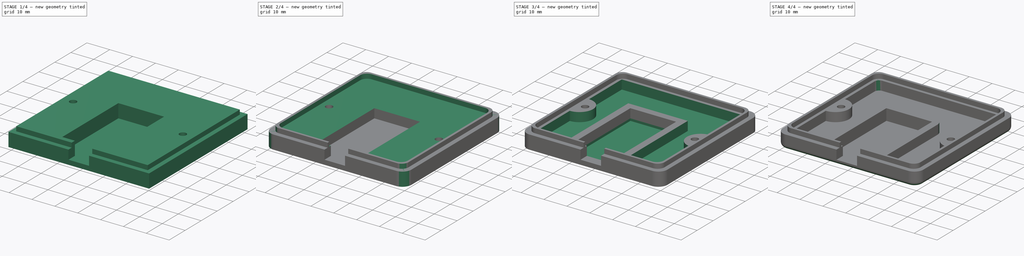
[diagram: build sequence overview — one tinted view per stage of 4, left to right]
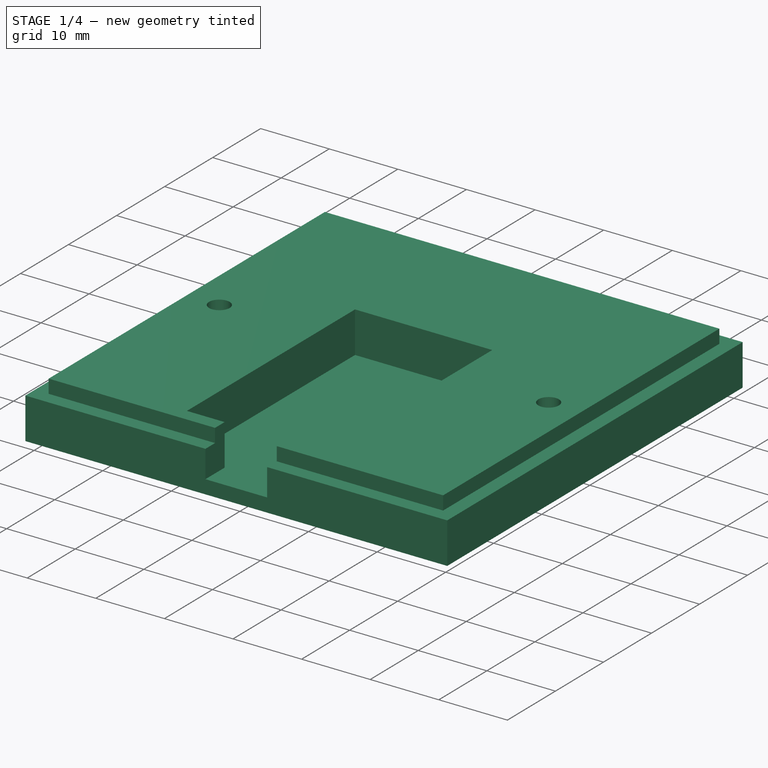
[diagram: stage 1 of 4 — iso view after this stage's code; geometry added in this stage tinted green]
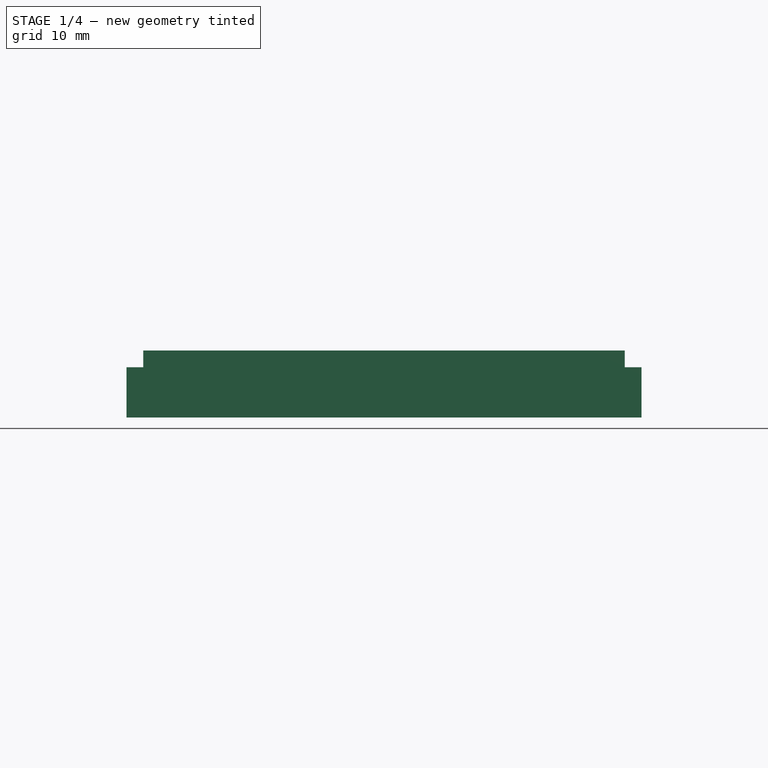
[diagram: stage 1 of 4 — front view after this stage's code; geometry added in this stage tinted green]
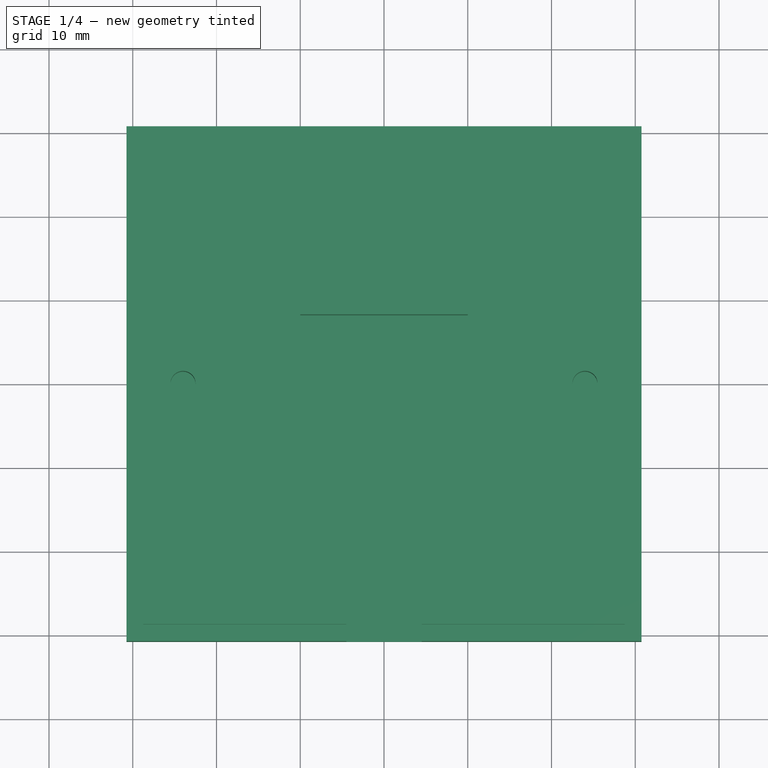
[diagram: stage 1 of 4 — top view after this stage's code; geometry added in this stage tinted green]
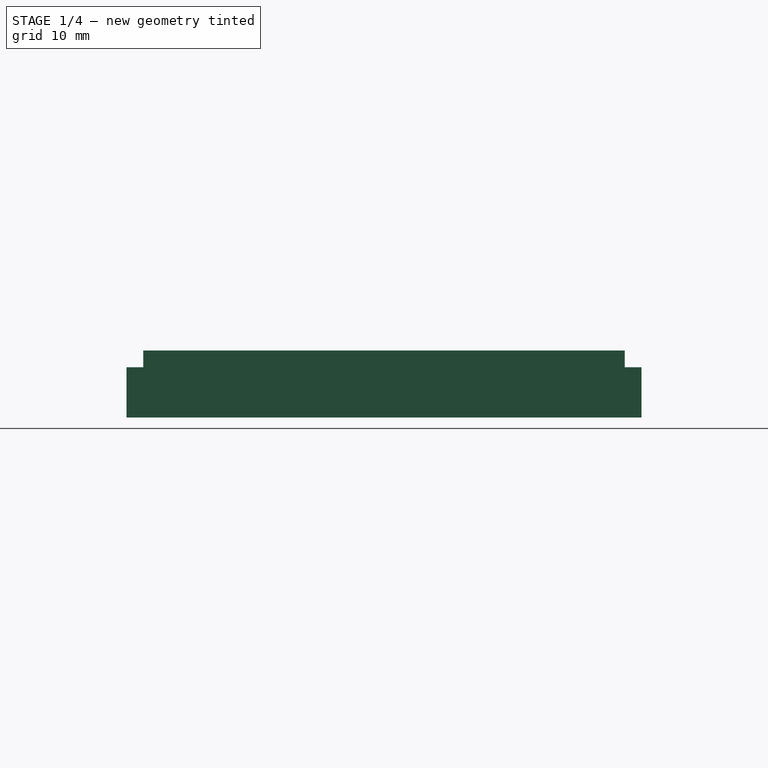
[diagram: stage 1 of 4 — right view after this stage's code; geometry added in this stage tinted green]
FCSTD DOCUMENT  (FreeCAD 0.17R13541 (Git))
Label: case_v1.0
License: All rights reserved
LicenseURL: http://en.wikipedia.org/wiki/All_rights_reserved
objects: Sketcher::SketchObject×6, PartDesign::Pocket×5, PartDesign::Fillet×5, PartDesign::Pad×1, PartDesign::Body×1
note: 24 computed .brp shape members not serialized (recipe doc carries the construction recipe); baked Part::Feature solids carry a one-line shape summary decoded from their .brp

FEATURE [Sketcher::SketchObject] Sketch
  MapMode = 5
  Support = -> [XY_Plane]
  sketch-geometry (4):
    g0: LineSegment StartX=-30.75 StartY=30.75 StartZ=0 EndX=30.75 EndY=30.75 EndZ=0
    g1: LineSegment StartX=30.75 StartY=30.75 StartZ=0 EndX=30.75 EndY=-30.75 EndZ=0
    g2: LineSegment StartX=30.75 StartY=-30.75 StartZ=0 EndX=-30.75 EndY=-30.75 EndZ=0
    g3: LineSegment StartX=-30.75 StartY=-30.75 StartZ=0 EndX=-30.75 EndY=30.75 EndZ=0
  constraints (12):
    c: Coincident(g0,g1)
    c: Coincident(g1,g2)
    c: Coincident(g2,g3)
    c: Coincident(g3,g0)
    c: Horizontal(g0)
    c: Horizontal(g2)
    c: Vertical(g1)
    c: Vertical(g3)
    c: Symmetric(g0,g0,g-2)
    c: Symmetric(g0,g2,g-1)
    c: DistanceX(g0,g0) = 61.5
    c: DistanceY(g3,g3) = 61.5
FEATURE [PartDesign::Pad] Pad
  Length = 8
  Length2 = 100
  Profile = -> Sketch
  Type = 0
FEATURE [Sketcher::SketchObject] Sketch001
  ExternalGeometry = -> [Pad]
  MapMode = 5
  Placement = pos=(0,0,8) rot=(0,0,1;0rad)
  Support = -> [Pad]
  sketch-geometry (10):
    g0: Circle CenterX=-24 CenterY=0 CenterZ=0 NormalX=0 NormalY=0 NormalZ=1 AngleXU=0 Radius=1.5
    g1: Circle CenterX=24 CenterY=0 CenterZ=0 NormalX=0 NormalY=0 NormalZ=1 AngleXU=0 Radius=1.5
    g2: LineSegment StartX=-10 StartY=8.25 StartZ=0 EndX=10 EndY=8.25 EndZ=0
    g3: LineSegment StartX=10 StartY=8.25 StartZ=0 EndX=10 EndY=-26.75 EndZ=0
    g4: LineSegment StartX=10 StartY=-26.75 StartZ=0 EndX=4.5 EndY=-26.75 EndZ=0
    g5: LineSegment StartX=-10 StartY=-26.75 StartZ=0 EndX=-10 EndY=8.25 EndZ=0
    g6: LineSegment StartX=4.5 StartY=-26.75 StartZ=0 EndX=4.5 EndY=-30.75 EndZ=0
    g7: LineSegment StartX=4.5 StartY=-30.75 StartZ=0 EndX=-4.5 EndY=-30.75 EndZ=0
    g8: LineSegment StartX=-4.5 StartY=-30.75 StartZ=0 EndX=-4.5 EndY=-26.75 EndZ=0
    g9: LineSegment StartX=-4.5 StartY=-26.75 StartZ=0 EndX=-10 EndY=-26.75 EndZ=0
  constraints (31):
    c: PointOnObject(g0,g-1)
    c: PointOnObject(g1,g-1)
    c: Symmetric(g0,g1,g-1)
    c: DistanceX(g0,g1) = 48
    c: Radius(g0) = 1.5
    c: Equal(g0,g1)
    c: Coincident(g2,g3)
    c: Coincident(g3,g4)
    c: Coincident(g9,g5)
    c: Coincident(g5,g2)
    c: Horizontal(g2)
    c: Horizontal(g4)
    c: Vertical(g3)
    c: Vertical(g5)
    c: DistanceX(g2,g2) = 20
    c: DistanceY(g5,g5) = 35
    c: Symmetric(g2,g2,g-2)
    c: Coincident(g6,g7)
    c: Coincident(g7,g8)
    c: Horizontal(g7)
    c: Vertical(g6)
    c: Vertical(g8)
    c: PointOnObject(g8,g4)
    c: PointOnObject(g4,g6)
    c: PointOnObject(g9,g8)
    c: Tangent(g4,g9)
    c: Equal(g9,g4)
    c: DistanceX(g7,g7) = 9
    c: DistanceY(g8,g8) = 4
    c: PointOnObject(g7,g-3)
    c: Coincident(g6,g4)
FEATURE [PartDesign::Pocket] Pocket
  BaseFeature = -> Pad
  Length = 6
  Length2 = 100
  Profile = -> Sketch001
  Type = 0
FEATURE [Sketcher::SketchObject] Sketch002
  ExternalGeometry = -> [Pocket]
  MapMode = 5
  Placement = pos=(0,0,8) rot=(0,0,1;0rad)
  Support = -> [Pocket]
  sketch-geometry (8):
    g0: LineSegment StartX=-28.75 StartY=28.75 StartZ=0 EndX=28.75 EndY=28.75 EndZ=0
    g1: LineSegment StartX=28.75 StartY=28.75 StartZ=0 EndX=28.75 EndY=-28.75 EndZ=0
    g2: LineSegment StartX=28.75 StartY=-28.75 StartZ=0 EndX=-28.75 EndY=-28.75 EndZ=0
    g3: LineSegment StartX=-28.75 StartY=-28.75 StartZ=0 EndX=-28.75 EndY=28.75 EndZ=0
    g4: LineSegment StartX=-30.75 StartY=30.75 StartZ=0 EndX=30.75 EndY=30.75 EndZ=0
    g5: LineSegment StartX=30.75 StartY=30.75 StartZ=0 EndX=30.75 EndY=-30.75 EndZ=0
    g6: LineSegment StartX=30.75 StartY=-30.75 StartZ=0 EndX=-30.75 EndY=-30.75 EndZ=0
    g7: LineSegment StartX=-30.75 StartY=-30.75 StartZ=0 EndX=-30.75 EndY=30.75 EndZ=0
  constraints (22):
    c: Coincident(g0,g1)
    c: Coincident(g1,g2)
    c: Coincident(g2,g3)
    c: Coincident(g3,g0)
    c: Horizontal(g0)
    c: Horizontal(g2)
    c: Vertical(g1)
    c: Vertical(g3)
    c: Coincident(g4,g5)
    c: Coincident(g5,g6)
    c: Coincident(g6,g7)
    c: Coincident(g7,g4)
    c: Horizontal(g4)
    c: Horizontal(g6)
    c: Vertical(g5)
    c: Vertical(g7)
    c: Coincident(g4,g-3)
    c: Coincident(g5,g-4)
    c: DistanceX(g4,g0) = 2
    c: DistanceY(g0,g4) = 2
    c: DistanceX(g0,g4) = 2
    c: DistanceY(g5,g1) = 2
FEATURE [PartDesign::Pocket] Pocket001
  BaseFeature = -> Pocket
  Length = 2
  Length2 = 100
  Profile = -> Sketch002
  Type = 0
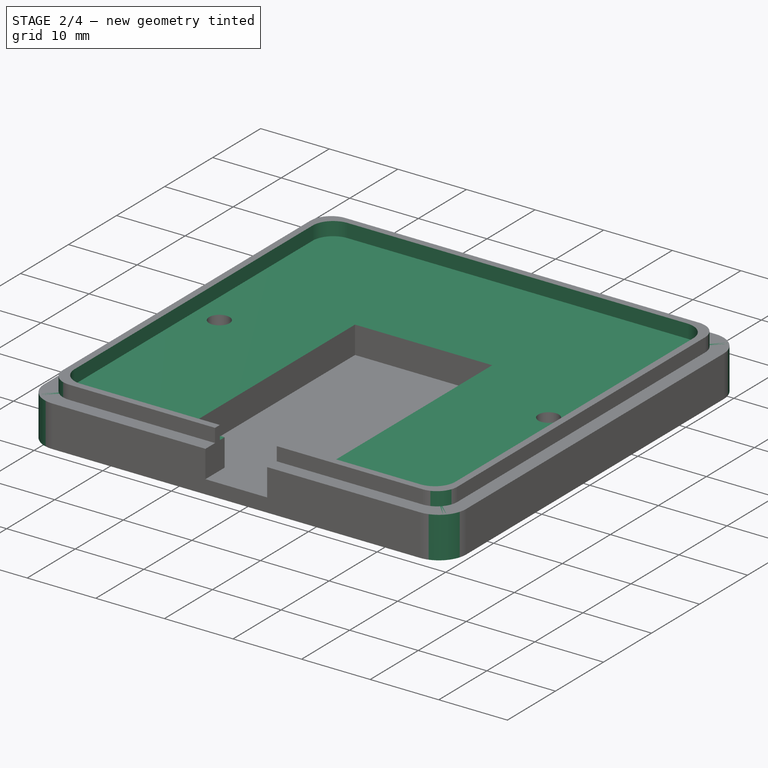
[diagram: stage 2 of 4 — iso view after this stage's code; geometry added in this stage tinted green]
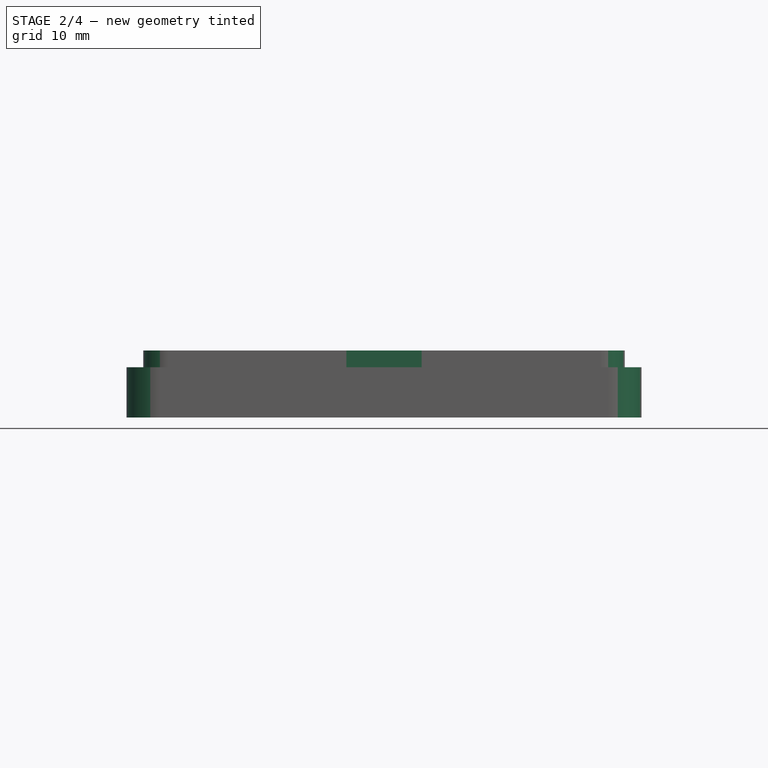
[diagram: stage 2 of 4 — front view after this stage's code; geometry added in this stage tinted green]
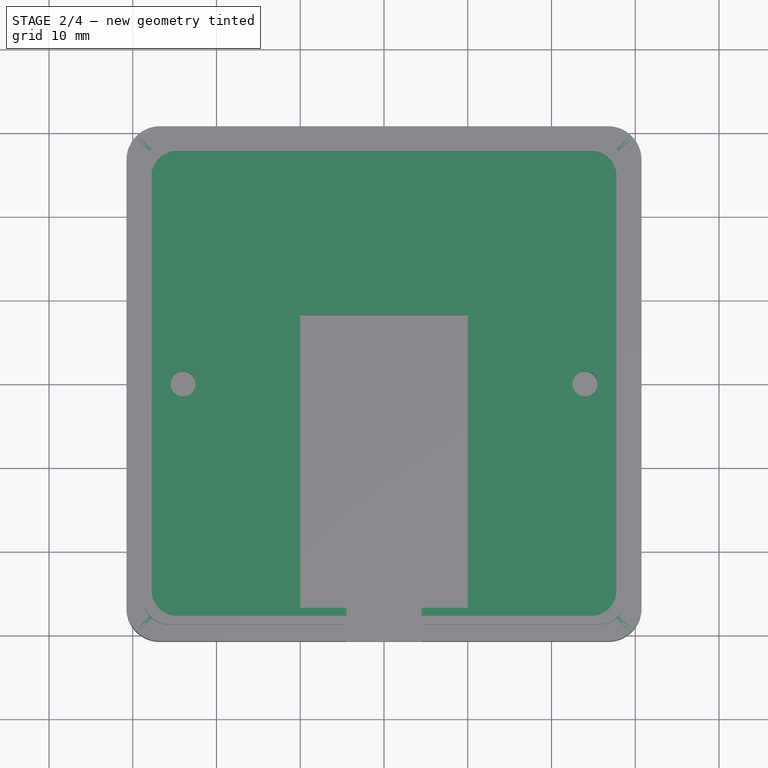
[diagram: stage 2 of 4 — top view after this stage's code; geometry added in this stage tinted green]
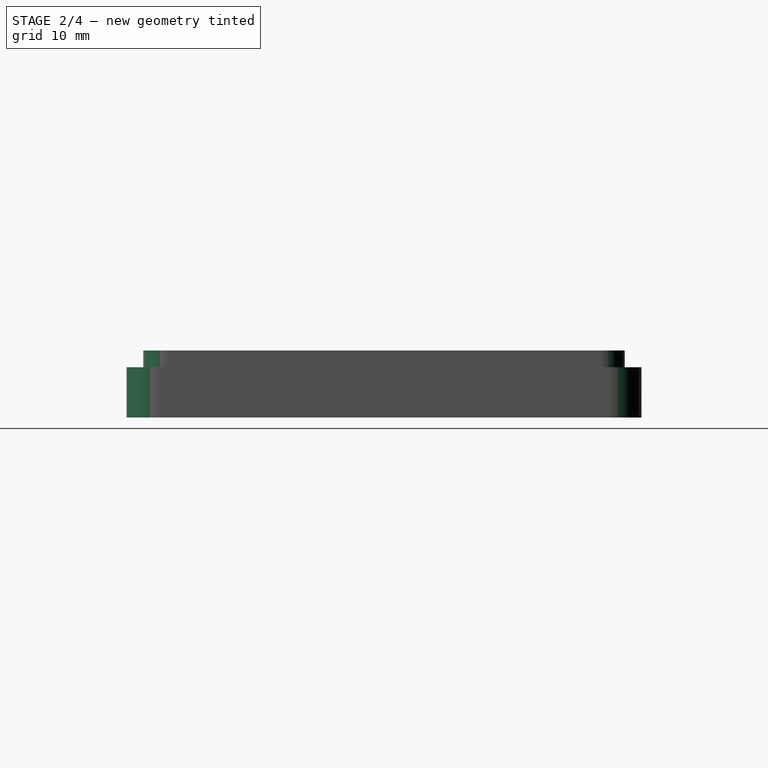
[diagram: stage 2 of 4 — right view after this stage's code; geometry added in this stage tinted green]
FEATURE [Sketcher::SketchObject] Sketch003
  ExternalGeometry = -> [Pocket001]
  MapMode = 5
  Placement = pos=(0,0,8) rot=(0,0,1;0rad)
  Support = -> [Pocket001]
  sketch-geometry (4):
    g0: LineSegment StartX=-27.75 StartY=27.75 StartZ=0 EndX=27.75 EndY=27.75 EndZ=0
    g1: LineSegment StartX=27.75 StartY=27.75 StartZ=0 EndX=27.75 EndY=-27.75 EndZ=0
    g2: LineSegment StartX=27.75 StartY=-27.75 StartZ=0 EndX=-27.75 EndY=-27.75 EndZ=0
    g3: LineSegment StartX=-27.75 StartY=-27.75 StartZ=0 EndX=-27.75 EndY=27.75 EndZ=0
  constraints (12):
    c: Coincident(g0,g1)
    c: Coincident(g1,g2)
    c: Coincident(g2,g3)
    c: Coincident(g3,g0)
    c: Horizontal(g0)
    c: Horizontal(g2)
    c: Vertical(g1)
    c: Vertical(g3)
    c: DistanceY(g0,g-3) = 1
    c: DistanceX(g0,g-3) = 1
    c: DistanceX(g-3,g0) = 1
    c: DistanceY(g-4,g1) = 1
FEATURE [PartDesign::Pocket] Pocket002
  BaseFeature = -> Pocket001
  Length = 2
  Length2 = 100
  Profile = -> Sketch003
  Type = 0
FEATURE [PartDesign::Fillet] Fillet
  Base = -> Pocket002 [Edge20,Edge8,Edge4,Edge2]
  BaseFeature = -> Pocket002
  Radius = 4
FEATURE [PartDesign::Fillet] Fillet001
  Base = -> Fillet [Edge49,Edge47,Edge43,Edge45,Edge86,Edge85,Edge67,Edge82]
  BaseFeature = -> Fillet
  Radius = 3
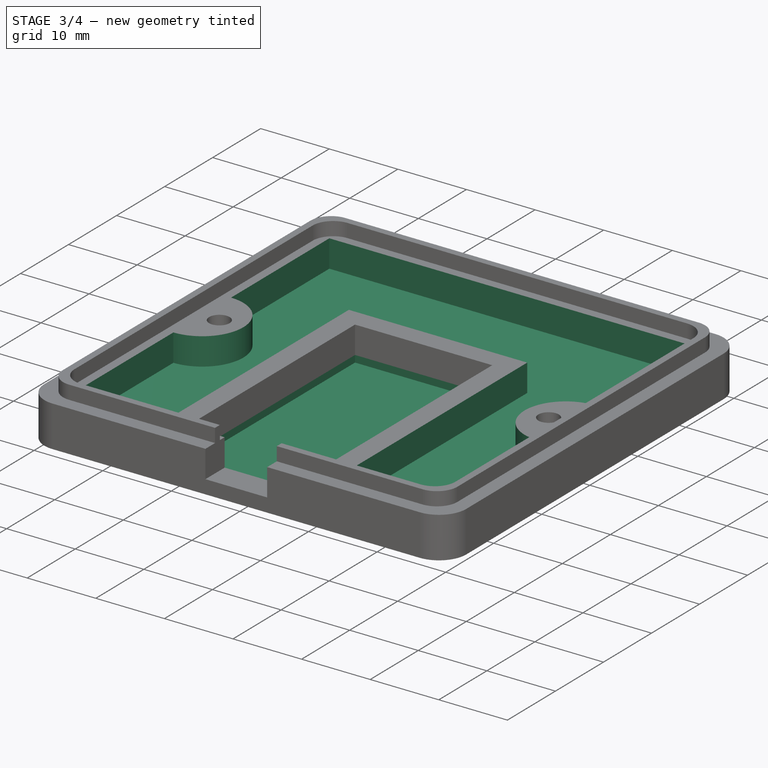
[diagram: stage 3 of 4 — iso view after this stage's code; geometry added in this stage tinted green]
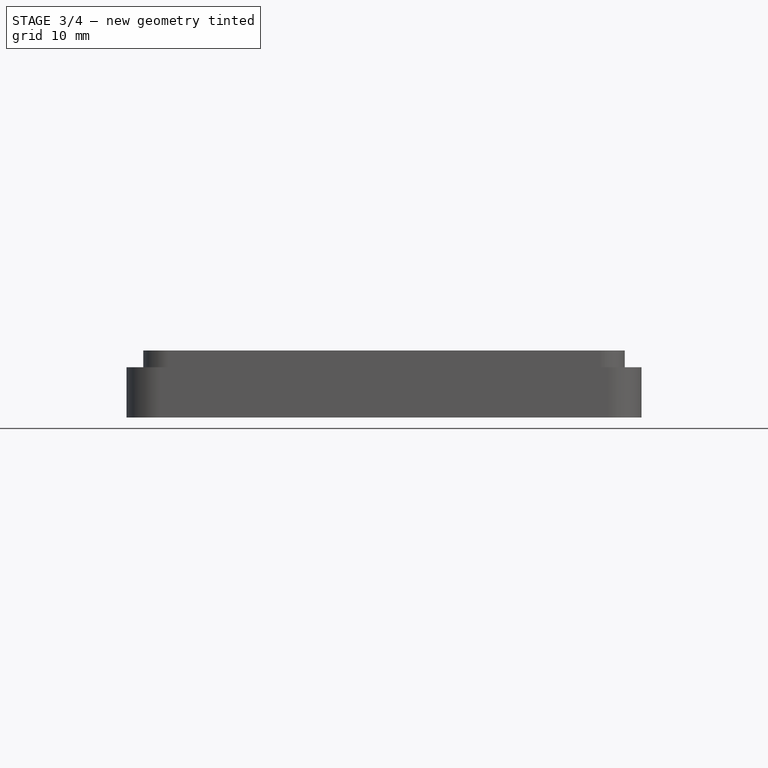
[diagram: stage 3 of 4 — front view after this stage's code; geometry added in this stage tinted green]
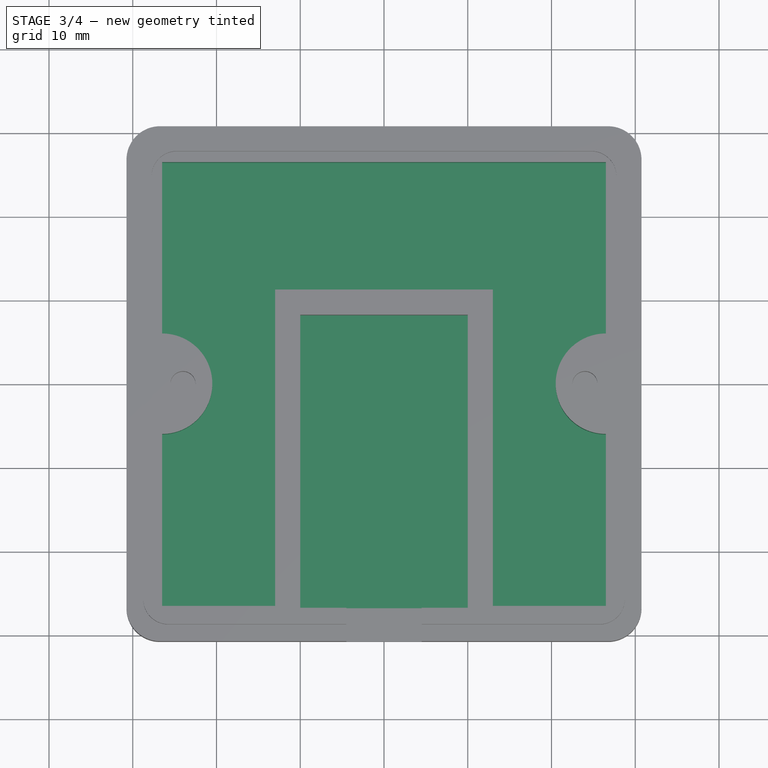
[diagram: stage 3 of 4 — top view after this stage's code; geometry added in this stage tinted green]
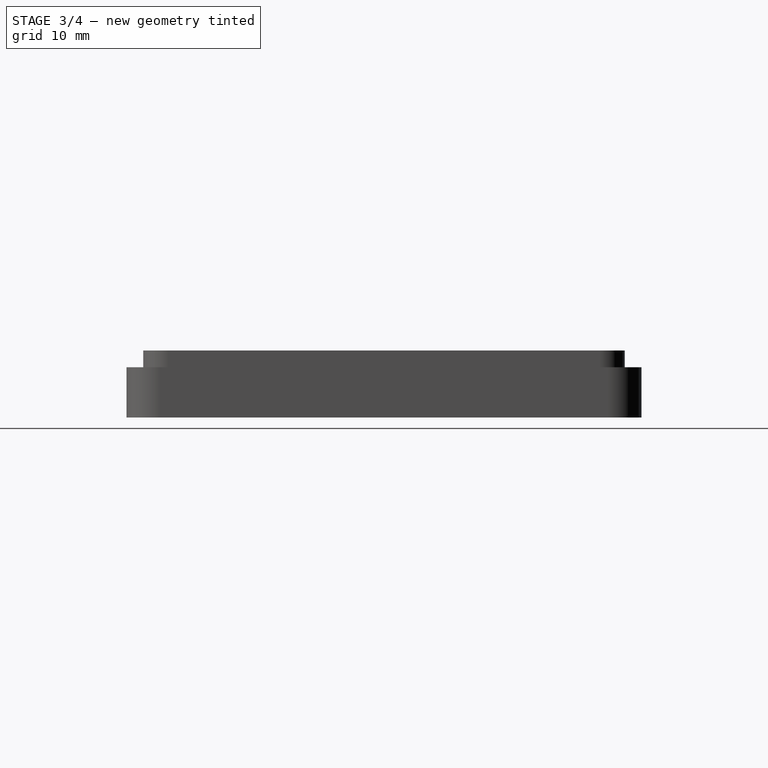
[diagram: stage 3 of 4 — right view after this stage's code; geometry added in this stage tinted green]
FEATURE [Sketcher::SketchObject] Sketch004
  ExternalGeometry = -> [Fillet001]
  MapMode = 5
  Placement = pos=(0,0,2) rot=(0,0,1;0rad)
  Support = -> [Fillet001]
  sketch-geometry (4):
    g0: LineSegment StartX=-10 StartY=8.25 StartZ=0 EndX=10 EndY=8.25 EndZ=0
    g1: LineSegment StartX=10 StartY=8.25 StartZ=0 EndX=10 EndY=-26.75 EndZ=0
    g2: LineSegment StartX=10 StartY=-26.75 StartZ=0 EndX=-10 EndY=-26.75 EndZ=0
    g3: LineSegment StartX=-10 StartY=-26.75 StartZ=0 EndX=-10 EndY=8.25 EndZ=0
  constraints (10):
    c: Coincident(g0,g1)
    c: Coincident(g1,g2)
    c: Coincident(g2,g3)
    c: Coincident(g3,g0)
    c: Horizontal(g0)
    c: Horizontal(g2)
    c: Vertical(g1)
    c: Vertical(g3)
    c: Coincident(g0,g-3)
    c: Coincident(g1,g-4)
FEATURE [PartDesign::Pocket] Pocket003
  BaseFeature = -> Fillet001
  Length = 1
  Length2 = 100
  Profile = -> Sketch004
  Type = 0
FEATURE [Sketcher::SketchObject] Sketch005
  ExternalGeometry = -> [Pocket003]
  MapMode = 5
  Placement = pos=(0,0,6) rot=(0,0,1;0rad)
  Support = -> [Pocket003]
  sketch-geometry (16):
    g0: LineSegment StartX=-26.5 StartY=26.4593 StartZ=0 EndX=26.5 EndY=26.4593 EndZ=0
    g1: LineSegment StartX=26.5 StartY=26.4593 StartZ=0 EndX=26.5 EndY=6 EndZ=0
    g2: LineSegment StartX=-26.5 StartY=6 StartZ=0 EndX=-26.5 EndY=26.4593 EndZ=0
    g3: LineSegment StartX=-13 StartY=11.25 StartZ=0 EndX=-13 EndY=-26.5407 EndZ=0
    g4: LineSegment StartX=-13 StartY=-26.5407 StartZ=0 EndX=-26.5 EndY=-26.5407 EndZ=0
    g5: LineSegment StartX=-26.5 StartY=-26.5407 StartZ=0 EndX=-26.5 EndY=-6 EndZ=0
    g6: LineSegment StartX=26.5 StartY=-6 StartZ=0 EndX=26.5 EndY=-26.5407 EndZ=0
    g7: LineSegment StartX=26.5 StartY=-26.5407 StartZ=0 EndX=13 EndY=-26.5407 EndZ=0
    g8: LineSegment StartX=13 StartY=-26.5407 StartZ=0 EndX=13 EndY=11.25 EndZ=0
    g9: LineSegment [constr] StartX=-26.5 StartY=26.4593 StartZ=0 EndX=26.5 EndY=26.4593 EndZ=0
    g10: LineSegment [constr] StartX=26.5 StartY=26.4593 StartZ=0 EndX=26.5 EndY=-26.5407 EndZ=0
    g11: LineSegment [constr] StartX=26.5 StartY=-26.5407 StartZ=0 EndX=-26.5 EndY=-26.5407 EndZ=0
    g12: LineSegment [constr] StartX=-26.5 StartY=-26.5407 StartZ=0 EndX=-26.5 EndY=26.4593 EndZ=0
    g13: LineSegment StartX=-13 StartY=11.25 StartZ=0 EndX=13 EndY=11.25 EndZ=0
    g14: ArcOfCircle CenterX=-26.5 CenterY=0 CenterZ=0 NormalX=0 NormalY=0 NormalZ=1 AngleXU=0 Radius=6 StartAngle=4.71239 EndAngle=7.85398
    g15: ArcOfCircle CenterX=26.5 CenterY=0 CenterZ=0 NormalX=0 NormalY=0 NormalZ=1 AngleXU=0 Radius=6 StartAngle=1.5708 EndAngle=4.71239
  constraints (46):
    c: Coincident(g0,g1)
    c: Coincident(g2,g0)
    c: Horizontal(g0)
    c: Vertical(g1)
    c: Vertical(g2)
    c: Coincident(g3,g4)
    c: Coincident(g4,g5)
    c: Horizontal(g4)
    c: Vertical(g3)
    c: Vertical(g5)
    c: Coincident(g6,g7)
    c: Coincident(g7,g8)
    c: Horizontal(g7)
    c: Vertical(g6)
    c: Vertical(g8)
    c: Coincident(g9,g10)
    c: Coincident(g10,g11)
    c: Coincident(g11,g12)
    c: Coincident(g12,g9)
    c: Horizontal(g9)
    c: Horizontal(g11)
    c: Vertical(g10)
    c: Vertical(g12)
    c: Symmetric(g9,g9,g-2)
    c: DistanceX(g9,g9) = 53
    c: DistanceY(g12,g12) = 53
    c: Coincident(g0,g9)
    c: PointOnObject(g1,g10)
    c: Coincident(g4,g11)
    c: Coincident(g6,g10)
    c: Coincident(g13,g3)
    c: Coincident(g13,g8)
    c: Horizontal(g13)
    c: DistanceX(g3,g-3) = 3
    c: DistanceX(g-3,g8) = 3
    c: DistanceY(g-3,g3) = 3
    c: PointOnObject(g14,g12)
    c: Coincident(g14,g2)
    c: Coincident(g14,g5)
    c: PointOnObject(g14,g-1)
    c: Radius(g14) = 6
    c: PointOnObject(g15,g-1)
    c: Coincident(g15,g1)
    c: Coincident(g15,g6)
    c: PointOnObject(g15,g10)
    c: Equal(g15,g14)
FEATURE [PartDesign::Pocket] Pocket004
  BaseFeature = -> Pocket003
  Length = 4
  Length2 = 100
  Profile = -> Sketch005
  Type = 0
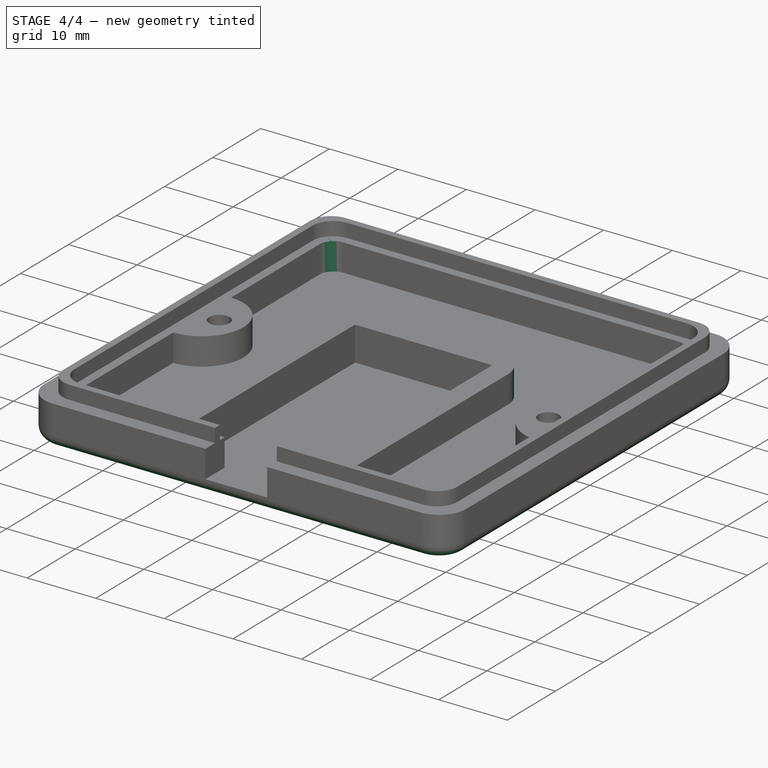
[diagram: stage 4 of 4 — iso view after this stage's code; geometry added in this stage tinted green]
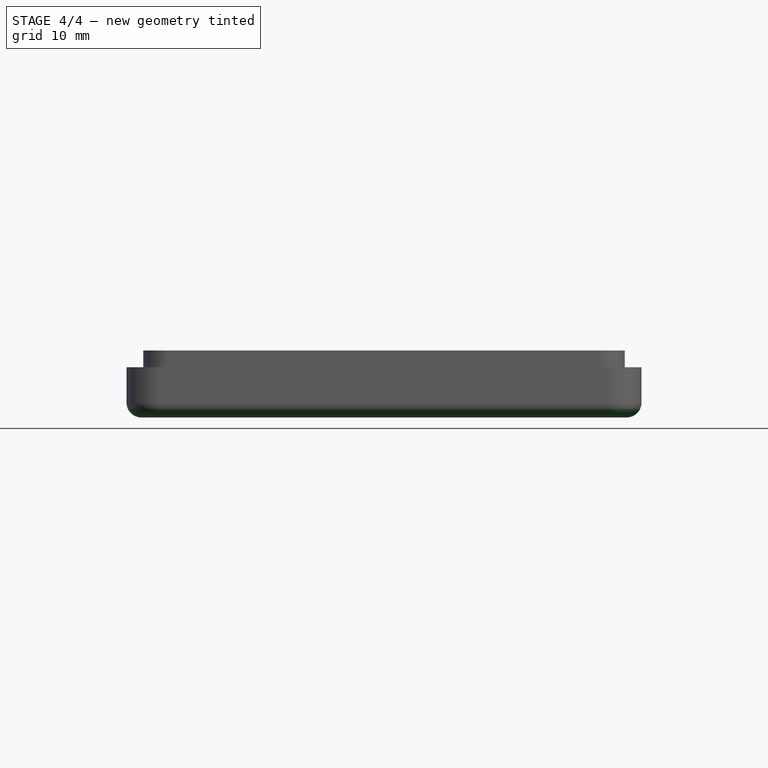
[diagram: stage 4 of 4 — front view after this stage's code; geometry added in this stage tinted green]
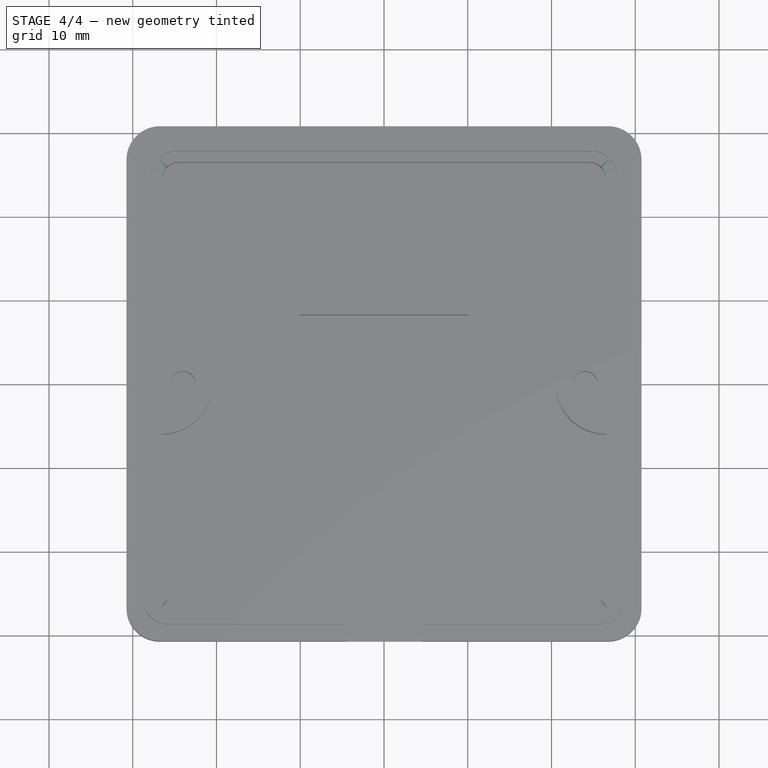
[diagram: stage 4 of 4 — top view after this stage's code; geometry added in this stage tinted green]
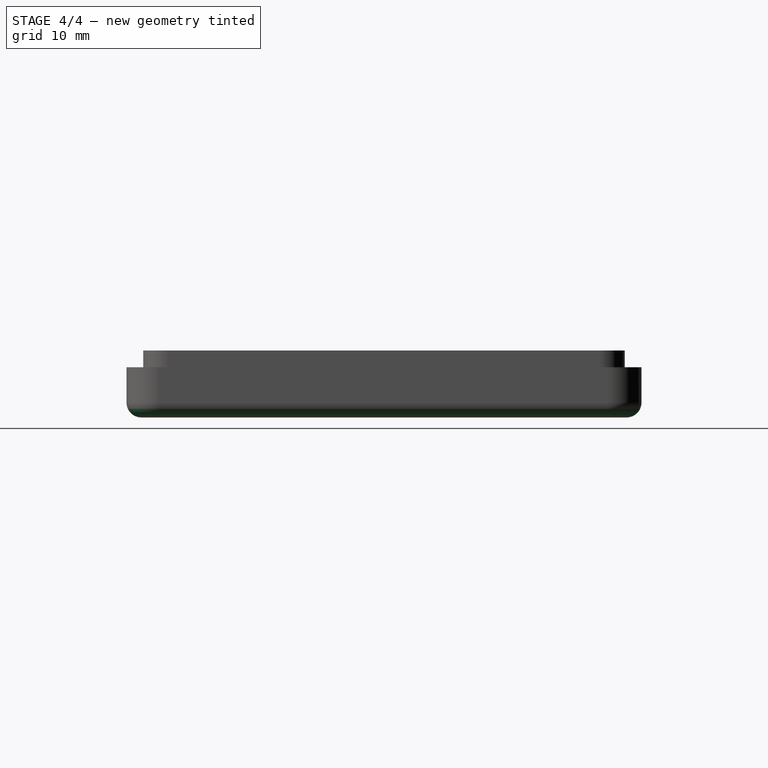
[diagram: stage 4 of 4 — right view after this stage's code; geometry added in this stage tinted green]
FEATURE [PartDesign::Fillet] Fillet002
  Base = -> Pocket004 [Edge134,Edge136,Edge128,Edge142,Edge126,Edge144]
  BaseFeature = -> Pocket004
  Radius = 2
FEATURE [PartDesign::Fillet] Fillet003
  Base = -> Fillet002 [Edge43,Edge38]
  BaseFeature = -> Fillet002
  Radius = 4
FEATURE [PartDesign::Fillet] Fillet004
  Base = -> Fillet003 [Face67]
  BaseFeature = -> Fillet003
  Radius = 1.8
FEATURE [PartDesign::Body] Body
  Group = -> [Sketch,Pad,Sketch001,Pocket,Sketch002,Pocket001,Sketch003,Pocket002,Fillet,Fillet001,Sketch004,Pocket003,Sketch005,Pocket004,Fillet002,Fillet003,Fillet004]
  Origin = -> Origin
  Tip = -> Fillet004
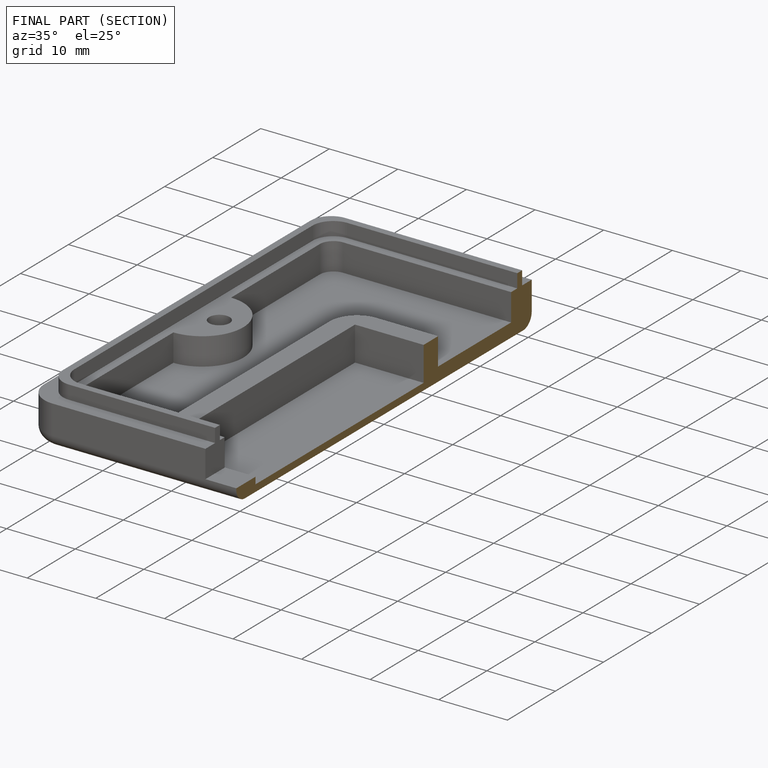
[diagram: finished part — half-section view (interior)]
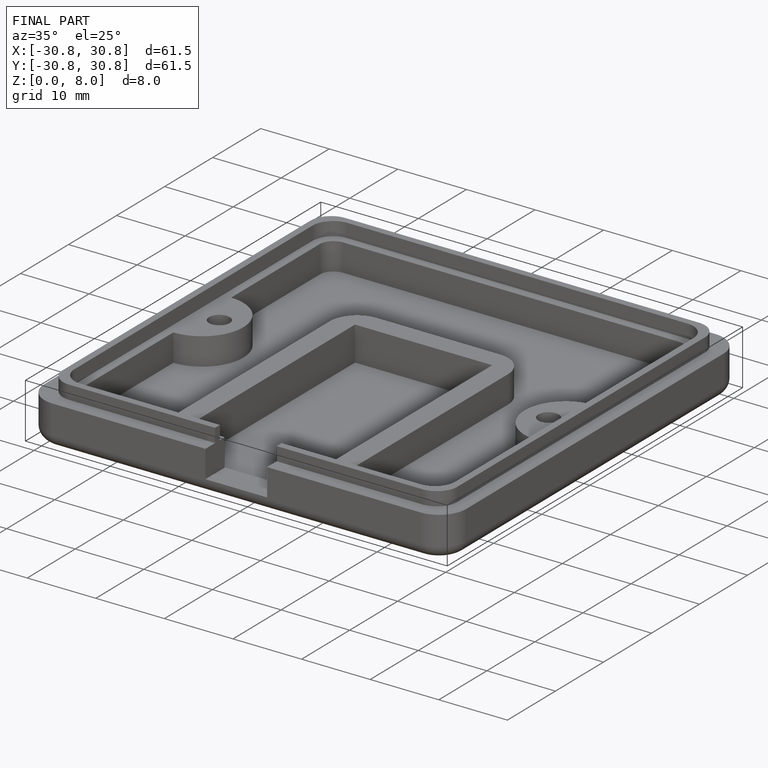
[diagram: finished part — iso view with bounding-box wireframe]
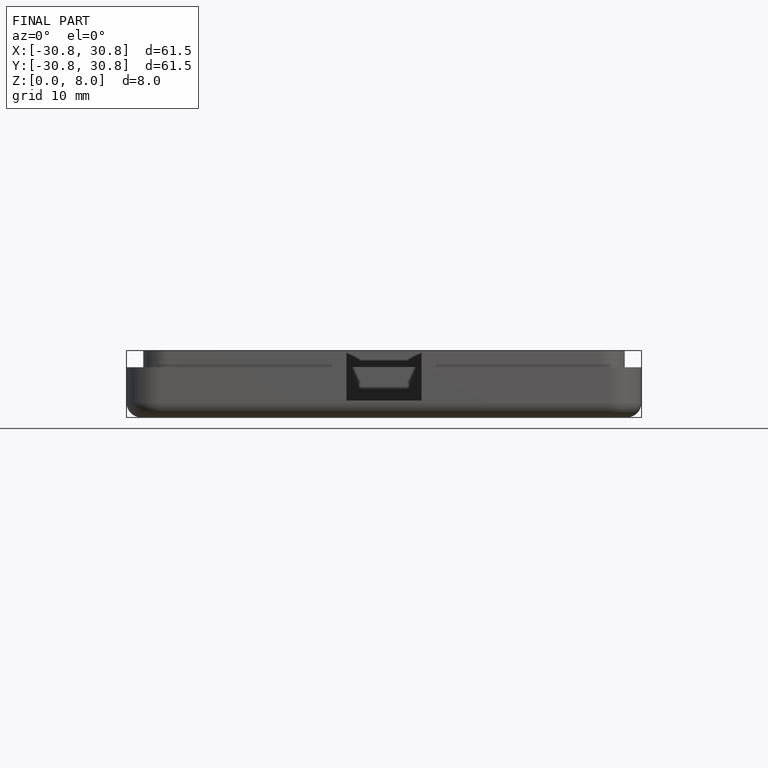
[diagram: finished part — front view with bounding-box wireframe]
